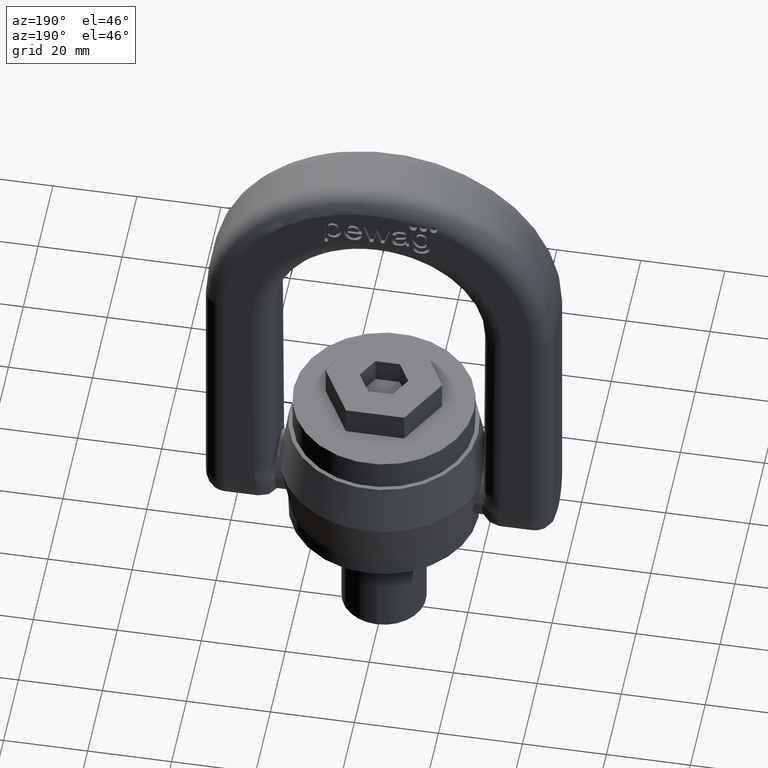
[diagram: clean part render]
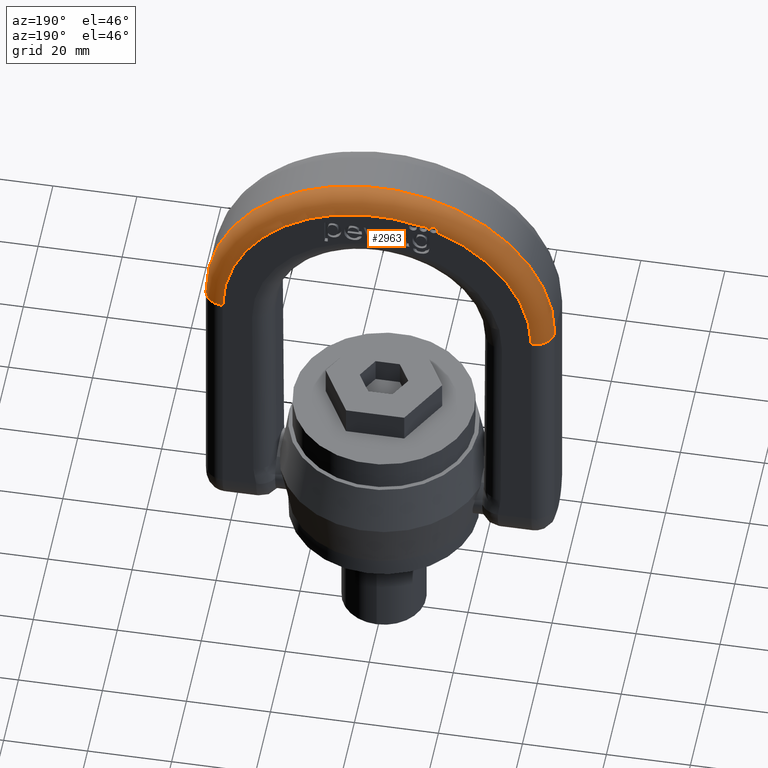
[diagram: same view with one face highlighted and labeled with its STEP entity id]
A machine part, auxiliary view. The second image highlights one B-rep face of the part: STEP entity #2963.
In plain terms, the highlighted toroidal blend (fillet) surface has major radius 36.75 mm and minor (blend) radius 4.75 mm.
Its self-contained STEP definition (entity closure, byte-faithful):
#210=TOROIDAL_SURFACE('',#5785,36.75,4.75);
#529=B_SPLINE_CURVE_WITH_KNOTS('',3,(#8417,#8418,#8419,#8420,#8421,#8422,
#8423,#8424,#8425,#8426,#8427,#8428,#8429,#8430,#8431,#8432),
 .UNSPECIFIED.,.F.,.F.,(4,3,3,3,3,4),(0.,0.202733608350922,0.405447240645258,
0.60827161715021,0.810758787166755,1.),.UNSPECIFIED.);
#554=B_SPLINE_CURVE_WITH_KNOTS('',3,(#8646,#8647,#8648,#8649,#8650,#8651,
#8652,#8653,#8654,#8655,#8656,#8657,#8658,#8659,#8660,#8661,#8662,#8663,
#8664,#8665,#8666,#8667,#8668,#8669,#8670,#8671,#8672,#8673,#8674,#8675,
#8676,#8677,#8678,#8679),.UNSPECIFIED.,.F.,.F.,(4,3,3,3,3,3,3,3,3,3,3,4),
(0.,0.0934917723992041,0.186920340952362,0.281376906309334,0.377501659391915,
0.473080979877599,0.566340148260302,0.658670544679737,0.752652484876985,
0.84866028780734,0.944446616786938,1.),.UNSPECIFIED.);
#2609=FACE_OUTER_BOUND('',#3323,.T.);
#2963=ADVANCED_FACE('',(#2609),#210,.T.);
#3323=EDGE_LOOP('',(#4475,#4476,#4477,#4478,#4479,#4480,#4481,#4482));
#4475=ORIENTED_EDGE('',*,*,#5528,.T.);
#4476=ORIENTED_EDGE('',*,*,#5092,.F.);
#4477=ORIENTED_EDGE('',*,*,#5530,.F.);
#4478=ORIENTED_EDGE('',*,*,#5305,.F.);
#4479=ORIENTED_EDGE('',*,*,#5347,.F.);
#4480=ORIENTED_EDGE('',*,*,#5303,.F.);
#4481=ORIENTED_EDGE('',*,*,#5378,.F.);
#4482=ORIENTED_EDGE('',*,*,#5301,.F.);
#4661=VERTEX_POINT('',#7049);
#4674=VERTEX_POINT('',#7081);
#4801=VERTEX_POINT('',#8241);
#4802=VERTEX_POINT('',#8243);
#4803=VERTEX_POINT('',#8245);
#4804=VERTEX_POINT('',#8247);
#4805=VERTEX_POINT('',#8249);
#4806=VERTEX_POINT('',#8251);
#5092=EDGE_CURVE('',#4674,#4661,#5566,.T.);
#5301=EDGE_CURVE('',#4801,#4802,#5573,.T.);
#5303=EDGE_CURVE('',#4803,#4804,#5575,.T.);
#5305=EDGE_CURVE('',#4805,#4806,#5577,.T.);
#5347=EDGE_CURVE('',#4804,#4805,#529,.T.);
#5378=EDGE_CURVE('',#4802,#4803,#554,.T.);
#5528=EDGE_CURVE('',#4801,#4661,#5584,.T.);
#5530=EDGE_CURVE('',#4806,#4674,#5586,.T.);
#5566=CIRCLE('',#5656,41.5);
#5573=CIRCLE('',#5712,36.75);
#5575=CIRCLE('',#5714,36.75);
#5577=CIRCLE('',#5716,36.75);
#5584=CIRCLE('',#5780,4.75);
#5586=CIRCLE('',#5784,4.75);
#5656=AXIS2_PLACEMENT_3D('',#7086,#6006,#6007);
#5712=AXIS2_PLACEMENT_3D('',#8242,#6255,#6256);
#5714=AXIS2_PLACEMENT_3D('',#8246,#6259,#6260);
#5716=AXIS2_PLACEMENT_3D('',#8250,#6263,#6264);
#5780=AXIS2_PLACEMENT_3D('',#9455,#6538,#6539);
#5784=AXIS2_PLACEMENT_3D('',#9459,#6546,#6547);
#5785=AXIS2_PLACEMENT_3D('',#9460,#6548,#6549);
#6006=DIRECTION('',(-2.34291072916505E-15,-1.,0.));
#6007=DIRECTION('',(1.,-2.34083167842654E-15,0.));
#6255=DIRECTION('',(2.34291072916505E-15,1.,0.));
#6256=DIRECTION('',(1.,-2.36016799452627E-15,0.));
#6259=DIRECTION('',(2.34291072916505E-15,1.,0.));
#6260=DIRECTION('',(1.,-2.36016799452627E-15,0.));
#6263=DIRECTION('',(2.34291072916505E-15,1.,0.));
#6264=DIRECTION('',(1.,-2.36016799452627E-15,0.));
#6538=DIRECTION('',(0.,0.,1.));
#6539=DIRECTION('',(0.999999999999999,0.,0.));
#6546=DIRECTION('',(0.,0.,-1.));
#6547=DIRECTION('',(-0.999999999999999,0.,0.));
#6548=DIRECTION('',(-2.34291072916505E-15,-1.,0.));
#6549=DIRECTION('',(1.,-2.34083167842654E-15,0.));
#7049=CARTESIAN_POINT('',(-41.5,4.75000000000009,70.5));
#7081=CARTESIAN_POINT('',(41.5,4.74999999999989,70.5));
#7086=CARTESIAN_POINT('',(0.,4.74999999999999,70.5));
#8241=CARTESIAN_POINT('',(-36.75,9.50000000000009,70.5));
#8242=CARTESIAN_POINT('',(1.1128825963534E-14,9.5,70.5));
#8243=CARTESIAN_POINT('',(-14.2240414007112,9.50000000000003,104.38567759734));
#8245=CARTESIAN_POINT('',(-12.5134325833668,9.50000000000003,105.053965112293));
#8246=CARTESIAN_POINT('',(1.1128825963534E-14,9.5,70.5));
#8247=CARTESIAN_POINT('',(-11.8523278197892,9.50000000000003,105.286273517758));
#8249=CARTESIAN_POINT('',(-10.5323995219235,9.50000000000002,105.70839474203));
#8250=CARTESIAN_POINT('',(1.1128825963534E-14,9.5,70.5));
#8251=CARTESIAN_POINT('',(36.75,9.49999999999991,70.5));
#8417=CARTESIAN_POINT('',(-11.8523278197892,9.50000000000003,105.286273517758));
#8418=CARTESIAN_POINT('',(-11.808652764826,9.50000000000003,105.381615815659));
#8419=CARTESIAN_POINT('',(-11.7479265198065,9.4981519428315,105.470729889037));
#8420=CARTESIAN_POINT('',(-11.6751834534778,9.49620633091735,105.546243630107));
#8421=CARTESIAN_POINT('',(-11.6024459652147,9.49426086819613,105.621751580652));
#8422=CARTESIAN_POINT('',(-11.5156806888879,9.49222606247313,105.685754029086));
#8423=CARTESIAN_POINT('',(-11.422050103247,9.4912518199168,105.732959345562));
#8424=CARTESIAN_POINT('',(-11.3283729421905,9.49027709273516,105.780188143757));
#8425=CARTESIAN_POINT('',(-11.2252372187851,9.49036078209594,105.811901102456));
#8426=CARTESIAN_POINT('',(-11.1212096206496,9.4914597015329,105.825464699985));
#8427=CARTESIAN_POINT('',(-11.0173463498986,9.49255688505977,105.839006871752));
#8428=CARTESIAN_POINT('',(-10.9097354366226,9.49466935128712,105.834836555679));
#8429=CARTESIAN_POINT('',(-10.8072424917908,9.49658775196742,105.813303111053));
#8430=CARTESIAN_POINT('',(-10.7112858264707,9.4983838105384,105.793142918148));
#8431=CARTESIAN_POINT('',(-10.6173982485348,9.50000000000002,105.757308516144));
#8432=CARTESIAN_POINT('',(-10.5323995219235,9.50000000000002,105.70839474203));
#8646=CARTESIAN_POINT('',(-14.2240414007112,9.50000000000003,104.38567759734));
#8647=CARTESIAN_POINT('',(-14.2803756634637,9.50000000000003,104.472531918103));
#8648=CARTESIAN_POINT('',(-14.322676182256,9.49653239518476,104.57019254935));
#8649=CARTESIAN_POINT('',(-14.3475099990643,9.48984820721142,104.67047128772));
#8650=CARTESIAN_POINT('',(-14.3723347425892,9.48316646137303,104.77071338825));
#8651=CARTESIAN_POINT('',(-14.3804195850075,9.47312030930535,104.876285858767));
#8652=CARTESIAN_POINT('',(-14.3713296507376,9.46145005718885,104.978709345564));
#8653=CARTESIAN_POINT('',(-14.3621395417372,9.44965119420166,105.082261580368));
#8654=CARTESIAN_POINT('',(-14.3351777065127,9.43592978431942,105.185415912217));
#8655=CARTESIAN_POINT('',(-14.2926256991063,9.42290473763204,105.280107049228));
#8656=CARTESIAN_POINT('',(-14.2493487435551,9.40965778640929,105.376411415986));
#8657=CARTESIAN_POINT('',(-14.1887048510493,9.39683544554689,105.466645157799));
#8658=CARTESIAN_POINT('',(-14.1155240554084,9.3871251177619,105.543281887496));
#8659=CARTESIAN_POINT('',(-14.0427819455146,9.37747299899694,105.619459214686));
#8660=CARTESIAN_POINT('',(-13.9555403119481,9.3706978667009,105.684327045184));
#8661=CARTESIAN_POINT('',(-13.8612123859824,9.3683073240378,105.732119207879));
#8662=CARTESIAN_POINT('',(-13.7691241885371,9.36597354257799,105.778776590298));
#8663=CARTESIAN_POINT('',(-13.667728352131,9.36776758449617,105.810455195114));
#8664=CARTESIAN_POINT('',(-13.565583649347,9.37329929365997,105.824542560578));
#8665=CARTESIAN_POINT('',(-13.4643920964862,9.3787793844038,105.838498471636));
#8666=CARTESIAN_POINT('',(-13.3597431086157,9.38802461370786,105.835620992548));
#8667=CARTESIAN_POINT('',(-13.2598951969662,9.3991511876559,105.816356436758));
#8668=CARTESIAN_POINT('',(-13.15827122354,9.41047567743781,105.796749209393));
#8669=CARTESIAN_POINT('',(-13.0588664944801,9.42398650329237,105.759669425776));
#8670=CARTESIAN_POINT('',(-12.9693708602984,9.43703423491367,105.708090286866));
#8671=CARTESIAN_POINT('',(-12.8780058053331,9.45035451279819,105.655433742168));
#8672=CARTESIAN_POINT('',(-12.7944401476914,9.46349132595583,105.586173411577));
#8673=CARTESIAN_POINT('',(-12.7256114888584,9.47391089843716,105.505850544324));
#8674=CARTESIAN_POINT('',(-12.6569644158704,9.4843029816879,105.425739587283));
#8675=CARTESIAN_POINT('',(-12.6010776208259,9.492227238439,105.332324882789));
#8676=CARTESIAN_POINT('',(-12.5629236274918,9.49636998304752,105.23350539118));
#8677=CARTESIAN_POINT('',(-12.5405766770381,9.49879640556371,105.175626409457));
#8678=CARTESIAN_POINT('',(-12.5239056572446,9.50000000000003,105.115166133278));
#8679=CARTESIAN_POINT('',(-12.5134325833668,9.50000000000003,105.053965112293));
#9455=CARTESIAN_POINT('',(-36.75,4.75000000000009,70.5));
#9459=CARTESIAN_POINT('',(36.75,4.74999999999991,70.5));
#9460=CARTESIAN_POINT('',(0.,4.75,70.5));